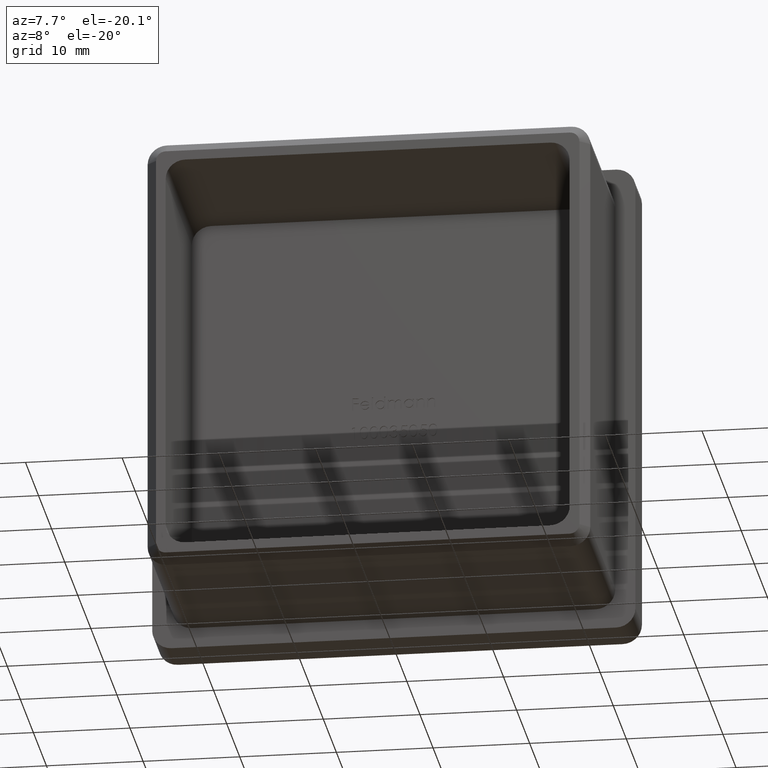
[diagram: clean part render]
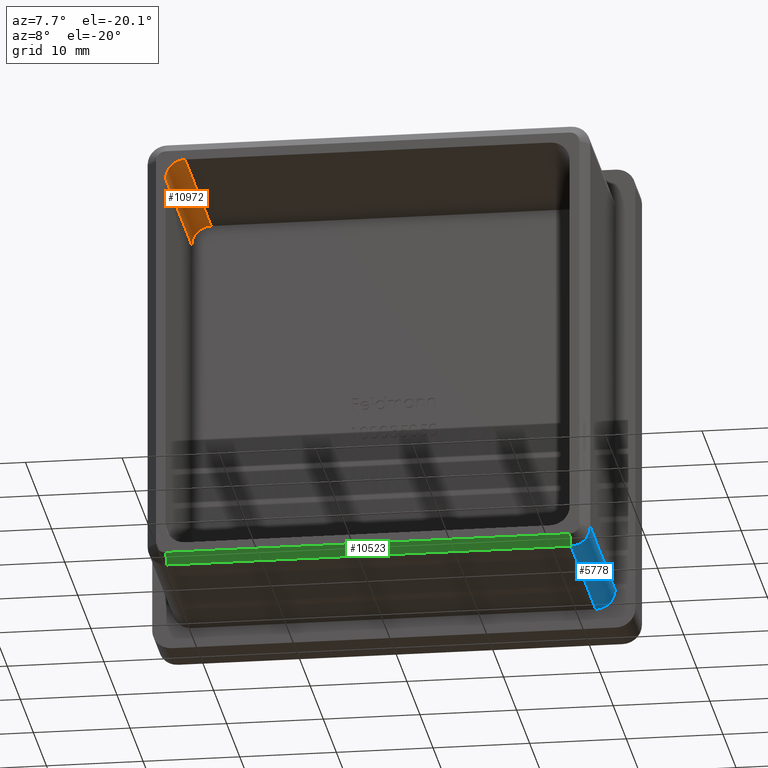
[diagram: same view with three faces highlighted in distinct colors, each labeled with its STEP entity id]
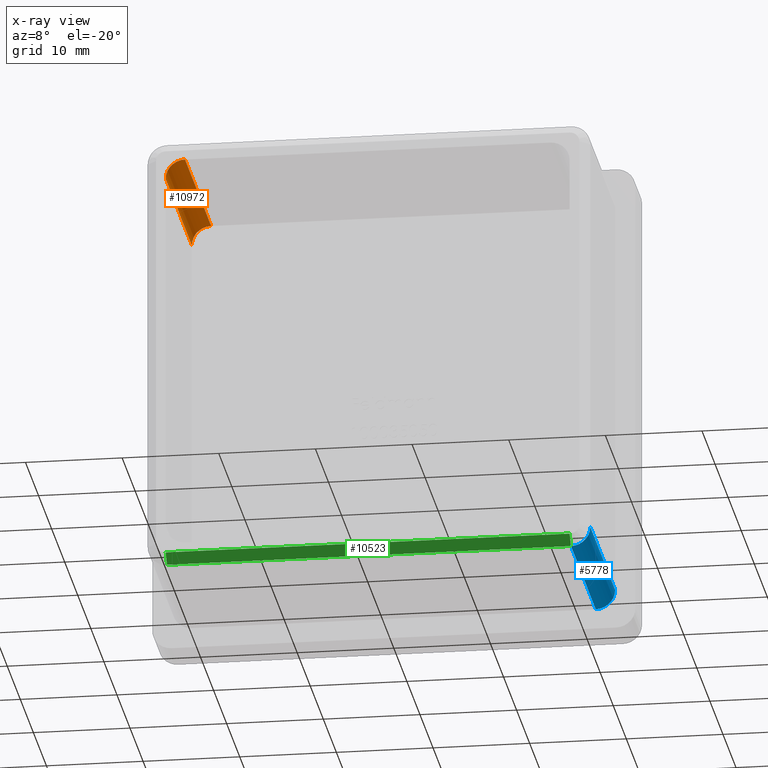
[diagram: x-ray of the same camera — body ghosted, the three highlighted faces saturated]
A machine part, auxiliary view with three faces highlighted in distinct colors.
The next image is the same camera in x-ray (body ghosted, the three faces saturated) — at least one of them is partly hidden behind the body in this view.
Their STEP definitions:

[orange] entity #10972 — the highlighted cylindrical surface (edge-blend (fillet) strip) has radius 2 mm, axis along (0, -1, 0).
#1256 = VECTOR ( 'NONE', #5318, 1000.000000000000000 ) ;
#1611 = CARTESIAN_POINT ( 'NONE',  ( -18.90000000000000600, 0.0000000000000000000, 20.90000000000000600 ) ) ;
#1625 = CYLINDRICAL_SURFACE ( 'NONE', #10888, 2.000000000000001800 ) ;
#1777 = DIRECTION ( 'NONE',  ( -0.0000000000000000000, 1.000000000000000000, -0.0000000000000000000 ) ) ;
#2553 = CARTESIAN_POINT ( 'NONE',  ( -18.90000000000000600, -20.00000000000000000, 20.90000000000000600 ) ) ;
#2682 = DIRECTION ( 'NONE',  ( 0.0000000000000000000, 0.0000000000000000000, 1.000000000000000000 ) ) ;
#2949 = CARTESIAN_POINT ( 'NONE',  ( -20.90000000000000600, -20.00000000000000000, 18.90000000000000600 ) ) ;
#2965 = CIRCLE ( 'NONE', #8359, 2.000000000000001800 ) ;
#3981 = DIRECTION ( 'NONE',  ( 0.0000000000000000000, 0.0000000000000000000, -1.000000000000000000 ) ) ;
#4028 = CARTESIAN_POINT ( 'NONE',  ( -20.90000000000000600, -20.00000000000000000, 18.90000000000000600 ) ) ;
#4345 = ORIENTED_EDGE ( 'NONE', *, *, #10461, .F. ) ;
#4501 = EDGE_CURVE ( 'NONE', #12138, #12332, #13766, .T. ) ;
#5318 = DIRECTION ( 'NONE',  ( -0.0000000000000000000, -1.000000000000000000, 0.0000000000000000000 ) ) ;
#6225 = CARTESIAN_POINT ( 'NONE',  ( -18.90000000000000600, 0.0000000000000000000, 18.90000000000000600 ) ) ;
#6262 = DIRECTION ( 'NONE',  ( 0.0000000000000000000, -1.000000000000000000, 0.0000000000000000000 ) ) ;
#7414 = DIRECTION ( 'NONE',  ( -0.0000000000000000000, -1.000000000000000000, -0.0000000000000000000 ) ) ;
#7500 = DIRECTION ( 'NONE',  ( -0.0000000000000000000, 1.000000000000000000, 0.0000000000000000000 ) ) ;
#7969 = FACE_OUTER_BOUND ( 'NONE', #8434, .T. ) ;
#7984 = ORIENTED_EDGE ( 'NONE', *, *, #4501, .F. ) ;
#8015 = AXIS2_PLACEMENT_3D ( 'NONE', #13468, #1777, #3981 ) ;
#8359 = AXIS2_PLACEMENT_3D ( 'NONE', #6225, #7414, #2682 ) ;
#8434 = EDGE_LOOP ( 'NONE', ( #4345, #13388, #8934, #7984 ) ) ;
#8527 = EDGE_CURVE ( 'NONE', #12332, #9579, #2965, .T. ) ;
#8934 = ORIENTED_EDGE ( 'NONE', *, *, #8527, .F. ) ;
#9533 = CARTESIAN_POINT ( 'NONE',  ( -18.90000000000000600, 0.0000000000000000000, 20.90000000000000600 ) ) ;
#9579 = VERTEX_POINT ( 'NONE', #13279 ) ;
#10392 = EDGE_CURVE ( 'NONE', #9579, #11574, #11315, .T. ) ;
#10461 = EDGE_CURVE ( 'NONE', #11574, #12138, #14455, .T. ) ;
#10606 = VECTOR ( 'NONE', #7500, 1000.000000000000000 ) ;
#10888 = AXIS2_PLACEMENT_3D ( 'NONE', #14407, #6262, #12252 ) ;
#10972 = ADVANCED_FACE ( 'NONE', ( #7969 ), #1625, .F. ) ;
#11315 = LINE ( 'NONE', #2949, #1256 ) ;
#11574 = VERTEX_POINT ( 'NONE', #4028 ) ;
#12138 = VERTEX_POINT ( 'NONE', #2553 ) ;
#12252 = DIRECTION ( 'NONE',  ( 0.0000000000000000000, 0.0000000000000000000, -1.000000000000000000 ) ) ;
#12332 = VERTEX_POINT ( 'NONE', #9533 ) ;
#13279 = CARTESIAN_POINT ( 'NONE',  ( -20.90000000000000600, 0.0000000000000000000, 18.90000000000000600 ) ) ;
#13388 = ORIENTED_EDGE ( 'NONE', *, *, #10392, .F. ) ;
#13468 = CARTESIAN_POINT ( 'NONE',  ( -18.90000000000000600, -20.00000000000000000, 18.90000000000000600 ) ) ;
#13766 = LINE ( 'NONE', #1611, #10606 ) ;
#14407 = CARTESIAN_POINT ( 'NONE',  ( -18.90000000000000600, -20.00000000000000000, 18.90000000000000600 ) ) ;
#14455 = CIRCLE ( 'NONE', #8015, 2.000000000000001800 ) ;

[blue] entity #5778 — the highlighted cylindrical surface (edge-blend (fillet) strip) has radius 2 mm, axis along (0, 1, 0).
#672 = EDGE_CURVE ( 'NONE', #8773, #11651, #14565, .T. ) ;
#719 = EDGE_CURVE ( 'NONE', #14019, #8773, #4919, .T. ) ;
#1002 = DIRECTION ( 'NONE',  ( 0.0000000000000000000, 1.000000000000000000, 0.0000000000000000000 ) ) ;
#1400 = CARTESIAN_POINT ( 'NONE',  ( 22.90000000000000200, -18.99999999999998600, -20.90000000000000200 ) ) ;
#2005 = DIRECTION ( 'NONE',  ( 0.0000000000000000000, 1.000000000000000000, 0.0000000000000000000 ) ) ;
#3746 = EDGE_CURVE ( 'NONE', #14019, #8640, #13965, .T. ) ;
#4456 = CARTESIAN_POINT ( 'NONE',  ( 20.90000000000000200, 0.0000000000000000000, -20.90000000000000200 ) ) ;
#4919 = LINE ( 'NONE', #8106, #13821 ) ;
#5345 = EDGE_LOOP ( 'NONE', ( #6528, #13192, #8655, #12079 ) ) ;
#5778 = ADVANCED_FACE ( 'NONE', ( #13589 ), #10054, .T. ) ;
#6528 = ORIENTED_EDGE ( 'NONE', *, *, #719, .F. ) ;
#6549 = DIRECTION ( 'NONE',  ( 0.0000000000000000000, 0.0000000000000000000, 1.000000000000000000 ) ) ;
#6899 = DIRECTION ( 'NONE',  ( 0.0000000000000000000, 0.0000000000000000000, 1.000000000000000000 ) ) ;
#7160 = CARTESIAN_POINT ( 'NONE',  ( 20.90000000000000200, -18.99999999999998600, -22.90000000000000200 ) ) ;
#7686 = CARTESIAN_POINT ( 'NONE',  ( 20.90000000000000200, -20.00000000000000000, -20.90000000000000200 ) ) ;
#7735 = LINE ( 'NONE', #8309, #13663 ) ;
#8106 = CARTESIAN_POINT ( 'NONE',  ( 22.90000000000000200, -20.00000000000000000, -20.90000000000000200 ) ) ;
#8153 = DIRECTION ( 'NONE',  ( 0.0000000000000000000, 1.000000000000000000, 0.0000000000000000000 ) ) ;
#8309 = CARTESIAN_POINT ( 'NONE',  ( 20.90000000000000200, -20.00000000000000000, -22.90000000000000200 ) ) ;
#8640 = VERTEX_POINT ( 'NONE', #7160 ) ;
#8655 = ORIENTED_EDGE ( 'NONE', *, *, #13359, .F. ) ;
#8773 = VERTEX_POINT ( 'NONE', #14729 ) ;
#10054 = CYLINDRICAL_SURFACE ( 'NONE', #14614, 2.000000000000001800 ) ;
#10057 = DIRECTION ( 'NONE',  ( 0.0000000000000000000, 1.000000000000000000, 0.0000000000000000000 ) ) ;
#10680 = DIRECTION ( 'NONE',  ( -0.0000000000000000000, -1.000000000000000000, -0.0000000000000000000 ) ) ;
#10694 = AXIS2_PLACEMENT_3D ( 'NONE', #4456, #1002, #6899 ) ;
#11463 = CARTESIAN_POINT ( 'NONE',  ( 20.90000000000000200, 0.0000000000000000000, -22.90000000000000200 ) ) ;
#11651 = VERTEX_POINT ( 'NONE', #11463 ) ;
#12079 = ORIENTED_EDGE ( 'NONE', *, *, #672, .F. ) ;
#12857 = DIRECTION ( 'NONE',  ( 0.0000000000000000000, 0.0000000000000000000, -1.000000000000000000 ) ) ;
#13192 = ORIENTED_EDGE ( 'NONE', *, *, #3746, .T. ) ;
#13359 = EDGE_CURVE ( 'NONE', #11651, #8640, #7735, .T. ) ;
#13589 = FACE_OUTER_BOUND ( 'NONE', #5345, .T. ) ;
#13663 = VECTOR ( 'NONE', #10680, 1000.000000000000000 ) ;
#13821 = VECTOR ( 'NONE', #8153, 1000.000000000000000 ) ;
#13965 = CIRCLE ( 'NONE', #15408, 2.000000000000001800 ) ;
#14019 = VERTEX_POINT ( 'NONE', #1400 ) ;
#14565 = CIRCLE ( 'NONE', #10694, 2.000000000000001800 ) ;
#14614 = AXIS2_PLACEMENT_3D ( 'NONE', #7686, #10057, #6549 ) ;
#14729 = CARTESIAN_POINT ( 'NONE',  ( 22.90000000000000200, 0.0000000000000000000, -20.90000000000000200 ) ) ;
#15060 = CARTESIAN_POINT ( 'NONE',  ( 20.90000000000000200, -18.99999999999998600, -20.90000000000000200 ) ) ;
#15408 = AXIS2_PLACEMENT_3D ( 'NONE', #15060, #2005, #12857 ) ;

[green] entity #10523 — the highlighted planar face has unit normal (-0, -0.7071, -0.7071).
#472 = ORIENTED_EDGE ( 'NONE', *, *, #847, .F. ) ;
#847 = EDGE_CURVE ( 'NONE', #8640, #15162, #12893, .T. ) ;
#916 = EDGE_CURVE ( 'NONE', #13034, #13189, #7880, .T. ) ;
#1155 = LINE ( 'NONE', #13395, #13981 ) ;
#1537 = CARTESIAN_POINT ( 'NONE',  ( 20.90000000000000200, -20.00000000000000000, -21.89999999999999500 ) ) ;
#1728 = DIRECTION ( 'NONE',  ( -1.000000000000000000, 0.0000000000000000000, 0.0000000000000000000 ) ) ;
#2319 = EDGE_CURVE ( 'NONE', #13034, #15162, #1155, .T. ) ;
#3166 = DIRECTION ( 'NONE',  ( -1.000000000000000000, 0.0000000000000000000, -0.0000000000000000000 ) ) ;
#3197 = CARTESIAN_POINT ( 'NONE',  ( -20.90000000000000200, -20.00000000000000000, -21.89999999999999500 ) ) ;
#3998 = ORIENTED_EDGE ( 'NONE', *, *, #2319, .T. ) ;
#4656 = EDGE_LOOP ( 'NONE', ( #3998, #472, #12203, #4960 ) ) ;
#4960 = ORIENTED_EDGE ( 'NONE', *, *, #916, .F. ) ;
#4970 = DIRECTION ( 'NONE',  ( 0.0000000000000000000, 0.7071067811865500200, -0.7071067811865451300 ) ) ;
#5743 = FACE_OUTER_BOUND ( 'NONE', #4656, .T. ) ;
#7160 = CARTESIAN_POINT ( 'NONE',  ( 20.90000000000000200, -18.99999999999998600, -22.90000000000000200 ) ) ;
#7332 = CARTESIAN_POINT ( 'NONE',  ( -20.90000000000000200, -18.99999999999998600, -22.90000000000000200 ) ) ;
#7747 = DIRECTION ( 'NONE',  ( 1.000000000000000000, 0.0000000000000000000, 0.0000000000000000000 ) ) ;
#7880 = LINE ( 'NONE', #11332, #8995 ) ;
#8640 = VERTEX_POINT ( 'NONE', #7160 ) ;
#8710 = PLANE ( 'NONE',  #13353 ) ;
#8860 = CARTESIAN_POINT ( 'NONE',  ( 0.0000000000000000000, -20.00000000000000000, -21.89999999999999500 ) ) ;
#8995 = VECTOR ( 'NONE', #7747, 1000.000000000000000 ) ;
#9097 = CARTESIAN_POINT ( 'NONE',  ( -20.90000000000000200, -18.99999999999998600, -22.90000000000000200 ) ) ;
#10523 = ADVANCED_FACE ( 'NONE', ( #5743 ), #8710, .T. ) ;
#10893 = LINE ( 'NONE', #12087, #11669 ) ;
#11332 = CARTESIAN_POINT ( 'NONE',  ( 20.90000000000000200, -20.00000000000000000, -21.89999999999999500 ) ) ;
#11669 = VECTOR ( 'NONE', #4970, 1000.000000000000100 ) ;
#12087 = CARTESIAN_POINT ( 'NONE',  ( 20.90000000000000200, -20.00000000000000000, -21.89999999999999500 ) ) ;
#12176 = VECTOR ( 'NONE', #3166, 1000.000000000000000 ) ;
#12203 = ORIENTED_EDGE ( 'NONE', *, *, #12408, .F. ) ;
#12408 = EDGE_CURVE ( 'NONE', #13189, #8640, #10893, .T. ) ;
#12893 = LINE ( 'NONE', #9097, #12176 ) ;
#13034 = VERTEX_POINT ( 'NONE', #3197 ) ;
#13189 = VERTEX_POINT ( 'NONE', #1537 ) ;
#13353 = AXIS2_PLACEMENT_3D ( 'NONE', #8860, #13567, #1728 ) ;
#13395 = CARTESIAN_POINT ( 'NONE',  ( -20.90000000000000200, -20.00000000000000000, -21.89999999999999500 ) ) ;
#13505 = DIRECTION ( 'NONE',  ( 0.0000000000000000000, 0.7071067811865500200, -0.7071067811865451300 ) ) ;
#13567 = DIRECTION ( 'NONE',  ( -0.0000000000000000000, -0.7071067811865451300, -0.7071067811865500200 ) ) ;
#13981 = VECTOR ( 'NONE', #13505, 1000.000000000000100 ) ;
#15162 = VERTEX_POINT ( 'NONE', #7332 ) ;